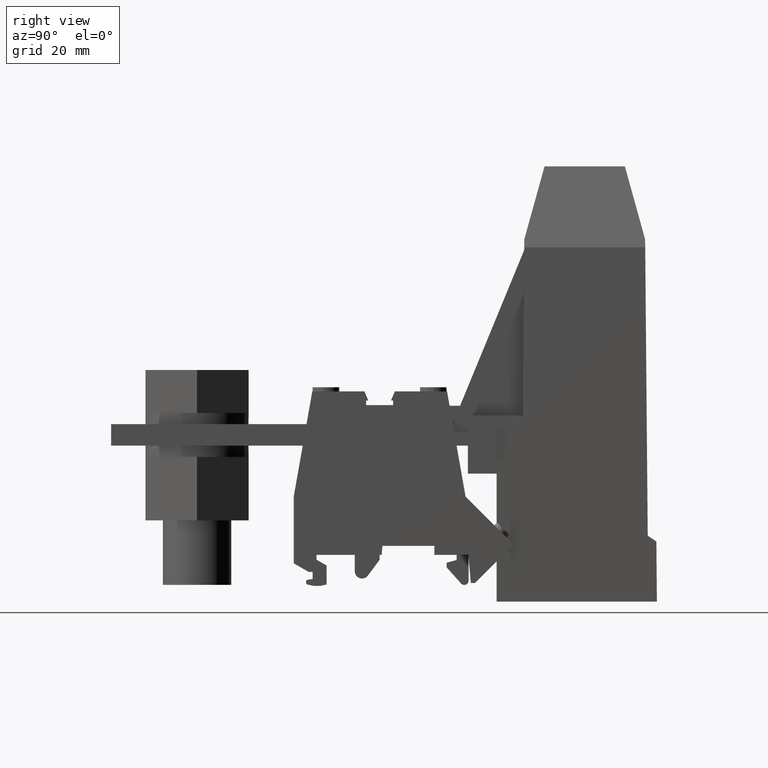
[diagram: clean part render]
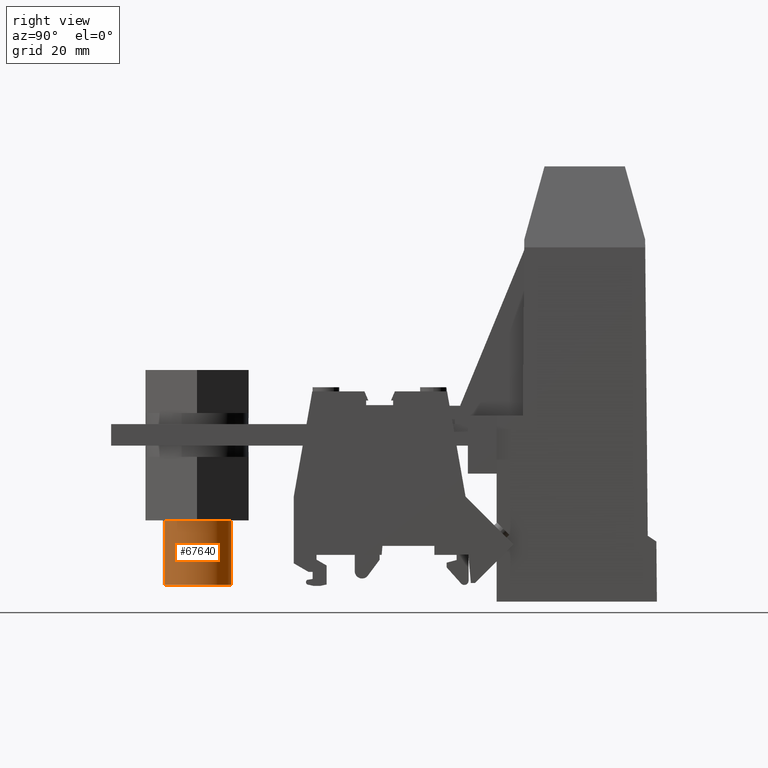
[diagram: same view with one face highlighted and labeled with its STEP entity id]
A machine part, right view. The second image highlights one B-rep face of the part: STEP entity #67640.
In plain terms, the highlighted cylindrical surface (edge-blend (fillet) strip) has radius 8 mm, axis along (-0, 0, 1).
Its self-contained STEP definition (entity closure, byte-faithful):
#34260=CARTESIAN_POINT('',(-198.107569230969,740.556092873312,
2.19999999999996));
#34270=DIRECTION('',(-2.85137669335947E-29,1.,-1.72552397227504E-28));
#34280=DIRECTION('',(-0.941113447967379,3.15037112213739E-29,
0.33809093163667));
#34290=AXIS2_PLACEMENT_3D('',#34260,#34270,#34280);
#34300=CIRCLE('',#34290,8.);
#34310=CARTESIAN_POINT('',(-205.636476814708,740.556092873312,
4.90472745309332));
#34320=VERTEX_POINT('',#34310);
#34330=CARTESIAN_POINT('',(-190.57866164723,740.556092873312,
-0.504727453093392));
#34340=VERTEX_POINT('',#34330);
#34370=EDGE_CURVE('',#34340,#34320,#34300,.T.);
#34540=CARTESIAN_POINT('',(-205.636476814708,740.556092873312,
4.90472745309332));
#34550=DIRECTION('',(-2.85137669335947E-29,1.,-1.72552397227504E-28));
#34560=VECTOR('',#34550,1.);
#34570=LINE('',#34540,#34560);
#34580=CARTESIAN_POINT('',(-205.636476814708,725.556092873312,
4.90472745309332));
#34590=VERTEX_POINT('',#34580);
#34600=EDGE_CURVE('',#34590,#34320,#34570,.T.);
#34630=CARTESIAN_POINT('',(-190.57866164723,740.556092873312,
-0.504727453093392));
#34640=DIRECTION('',(-2.85137669335947E-29,1.,-1.72552397227504E-28));
#34650=VECTOR('',#34640,1.);
#34660=LINE('',#34630,#34650);
#34670=CARTESIAN_POINT('',(-190.57866164723,725.556092873312,
-0.504727453093392));
#34680=VERTEX_POINT('',#34670);
#34690=EDGE_CURVE('',#34680,#34340,#34660,.T.);
#34710=CARTESIAN_POINT('',(-198.107569230969,725.556092873312,
2.19999999999996));
#34720=DIRECTION('',(-2.85137669335947E-29,1.,-1.72552397227504E-28));
#34730=DIRECTION('',(-0.941113447967379,3.15037112213739E-29,
0.33809093163667));
#34740=AXIS2_PLACEMENT_3D('',#34710,#34720,#34730);
#34750=CIRCLE('',#34740,8.);
#43260=EDGE_CURVE('',#34680,#34590,#34750,.T.);
#67530=CARTESIAN_POINT('',(-198.107569230969,740.556092873312,
2.19999999999996));
#67540=DIRECTION('',(-2.85137669335947E-29,1.,-1.72552397227504E-28));
#67550=DIRECTION('',(-0.941113447967379,3.15037112213739E-29,
0.33809093163667));
#67560=AXIS2_PLACEMENT_3D('',#67530,#67540,#67550);
#67570=CYLINDRICAL_SURFACE('',#67560,8.);
#67580=ORIENTED_EDGE('',*,*,#34600,.T.);
#67590=ORIENTED_EDGE('',*,*,#43260,.T.);
#67600=ORIENTED_EDGE('',*,*,#34690,.F.);
#67610=ORIENTED_EDGE('',*,*,#34370,.F.);
#67620=EDGE_LOOP('',(#67610,#67600,#67590,#67580));
#67630=FACE_OUTER_BOUND('',#67620,.T.);
#67640=ADVANCED_FACE('',(#67630),#67570,.T.);